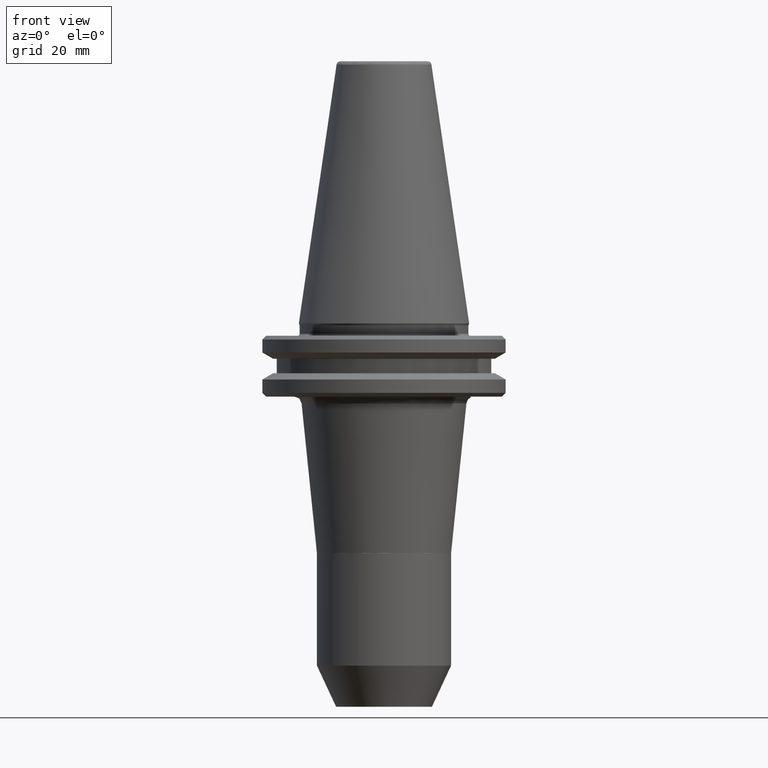
[diagram: clean part render]
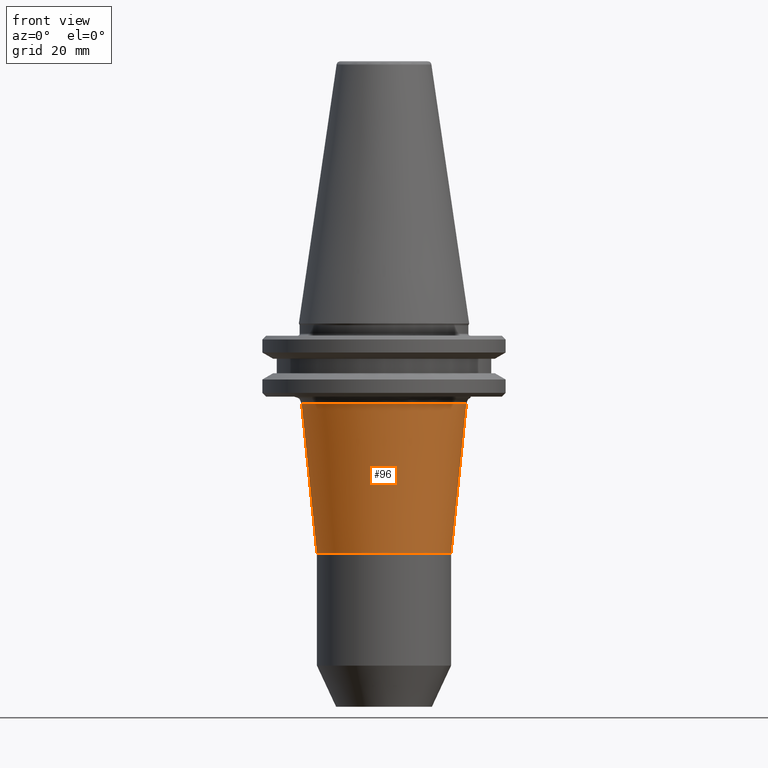
[diagram: same view with one face highlighted and labeled with its STEP entity id]
A machine part, front view. The second image highlights one B-rep face of the part: STEP entity #96.
In plain terms, the highlighted conical surface has half-angle 5.841 deg.
Its self-contained STEP definition (entity closure, byte-faithful):
#27 = CIRCLE ( 'NONE', #1374, 21.50000000000000000 ) ;
#46 = EDGE_CURVE ( 'NONE', #201, #78, #502, .T. ) ;
#73 = ORIENTED_EDGE ( 'NONE', *, *, #567, .T. ) ;
#77 = DIRECTION ( 'NONE',  ( 0.1017615539291785600, 0.0000000000000000000, 0.9948088188903025900 ) ) ;
#78 = VERTEX_POINT ( 'NONE', #101 ) ;
#93 = DIRECTION ( 'NONE',  ( 0.0000000000000000000, -0.0000000000000000000, 1.000000000000000000 ) ) ;
#96 = ADVANCED_FACE ( 'NONE', ( #1542 ), #1112, .T. ) ;
#101 = CARTESIAN_POINT ( 'NONE',  ( 17.51038236221939900, 0.0000000000000000000, -59.89850326475991000 ) ) ;
#106 = LINE ( 'NONE', #986, #364 ) ;
#111 = DIRECTION ( 'NONE',  ( -0.0000000000000000000, -0.0000000000000000000, -1.000000000000000000 ) ) ;
#121 = LINE ( 'NONE', #1246, #1515 ) ;
#176 = EDGE_CURVE ( 'NONE', #78, #853, #106, .T. ) ;
#200 = VERTEX_POINT ( 'NONE', #776 ) ;
#201 = VERTEX_POINT ( 'NONE', #1133 ) ;
#271 = CARTESIAN_POINT ( 'NONE',  ( 0.0000000000000000000, 0.0000000000000000000, -59.89850326475990300 ) ) ;
#275 = CARTESIAN_POINT ( 'NONE',  ( 0.0000000000000000000, 0.0000000000000000000, -20.89647689214164200 ) ) ;
#304 = ORIENTED_EDGE ( 'NONE', *, *, #46, .T. ) ;
#364 = VECTOR ( 'NONE', #77, 1000.000000000000000 ) ;
#502 = CIRCLE ( 'NONE', #846, 17.51038236221939900 ) ;
#554 = DIRECTION ( 'NONE',  ( 0.0000000000000000000, 0.0000000000000000000, 1.000000000000000000 ) ) ;
#567 = EDGE_CURVE ( 'NONE', #853, #200, #27, .T. ) ;
#776 = CARTESIAN_POINT ( 'NONE',  ( -21.50000000000000000, 2.632990618166809200E-015, -20.89647689214163500 ) ) ;
#808 = DIRECTION ( 'NONE',  ( 1.000000000000000000, 0.0000000000000000000, 0.0000000000000000000 ) ) ;
#839 = DIRECTION ( 'NONE',  ( 1.000000000000000000, 0.0000000000000000000, 0.0000000000000000000 ) ) ;
#846 = AXIS2_PLACEMENT_3D ( 'NONE', #271, #554, #1257 ) ;
#853 = VERTEX_POINT ( 'NONE', #1324 ) ;
#899 = ORIENTED_EDGE ( 'NONE', *, *, #176, .T. ) ;
#932 = ORIENTED_EDGE ( 'NONE', *, *, #994, .F. ) ;
#956 = AXIS2_PLACEMENT_3D ( 'NONE', #275, #93, #839 ) ;
#977 = CARTESIAN_POINT ( 'NONE',  ( 0.0000000000000000000, 0.0000000000000000000, -20.89647689214163500 ) ) ;
#986 = CARTESIAN_POINT ( 'NONE',  ( 21.50000000000000000, 0.0000000000000000000, -20.89647689214164200 ) ) ;
#994 = EDGE_CURVE ( 'NONE', #201, #200, #121, .T. ) ;
#1112 = CONICAL_SURFACE ( 'NONE', #956, 21.50000000000000000, 0.1019380079376348100 ) ;
#1133 = CARTESIAN_POINT ( 'NONE',  ( -17.51038236221939900, 2.388696994670317400E-015, -59.89850326475990300 ) ) ;
#1246 = CARTESIAN_POINT ( 'NONE',  ( -21.50000000000000000, 2.632990618166809200E-015, -20.89647689214164200 ) ) ;
#1248 = DIRECTION ( 'NONE',  ( -0.1017615539291785600, 1.246219612956292800E-017, 0.9948088188903025900 ) ) ;
#1257 = DIRECTION ( 'NONE',  ( 1.000000000000000000, 0.0000000000000000000, -3.962731230174999100E-016 ) ) ;
#1324 = CARTESIAN_POINT ( 'NONE',  ( 21.50000000000000000, 0.0000000000000000000, -20.89647689214163500 ) ) ;
#1374 = AXIS2_PLACEMENT_3D ( 'NONE', #977, #111, #808 ) ;
#1442 = EDGE_LOOP ( 'NONE', ( #932, #304, #899, #73 ) ) ;
#1515 = VECTOR ( 'NONE', #1248, 1000.000000000000000 ) ;
#1542 = FACE_OUTER_BOUND ( 'NONE', #1442, .T. ) ;